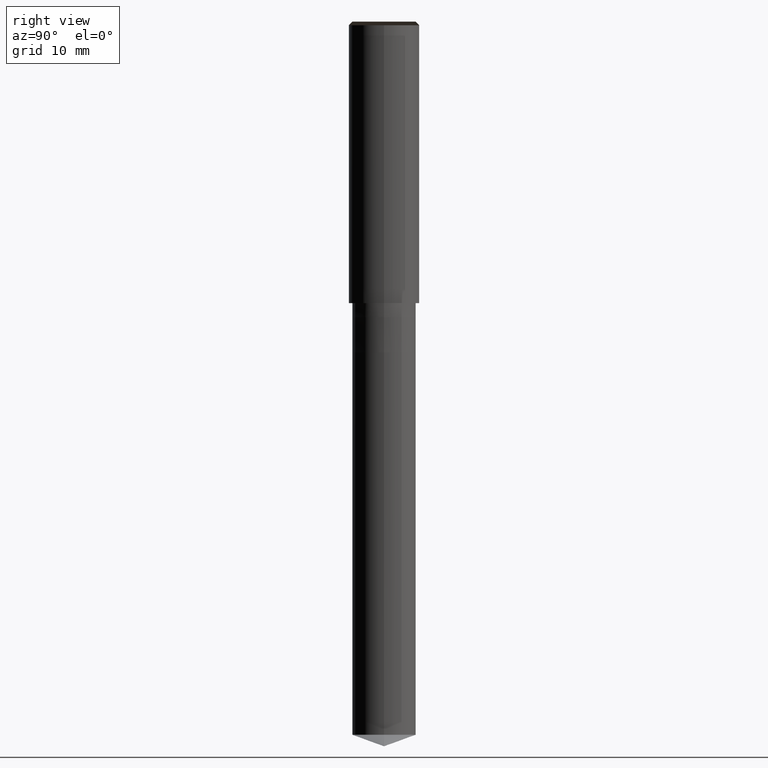
[diagram: clean part render]
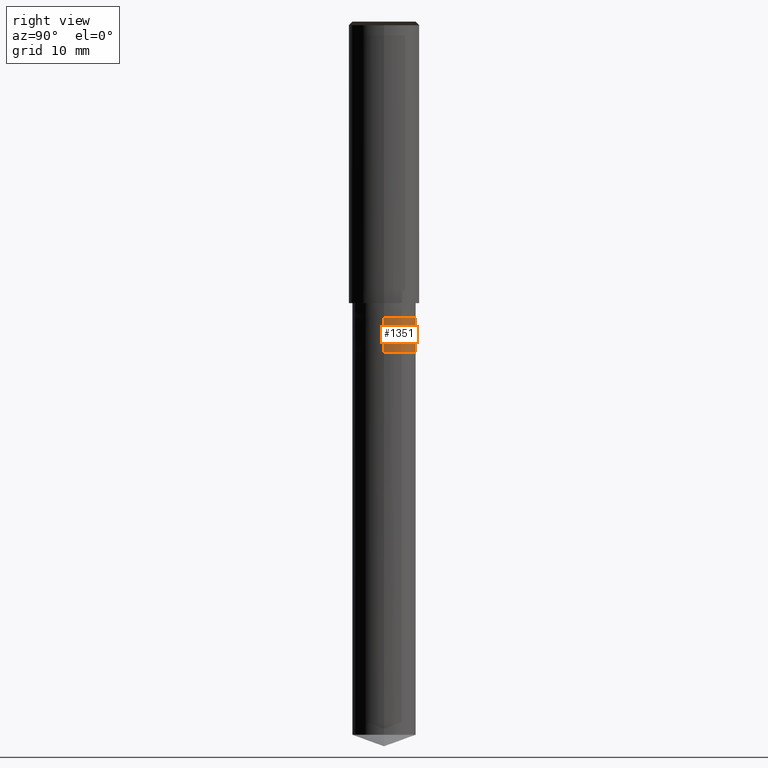
[diagram: same view with one face highlighted and labeled with its STEP entity id]
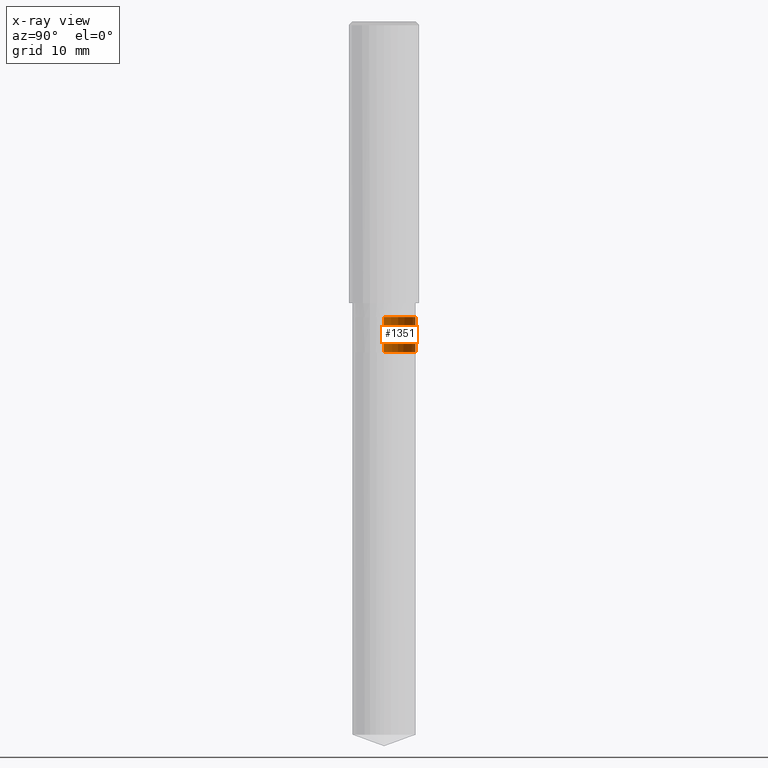
[diagram: x-ray of the same camera — body ghosted, the highlighted face saturated]
A machine part, right view. The second image highlights one B-rep face of the part: STEP entity #1351.
The next image is the same camera in x-ray: the body ghosted, the highlighted face saturated — about 0% of this face is hidden behind the body in this view.
In plain terms, the highlighted face is a freeform B-spline surface patch.
Its self-contained STEP definition (entity closure, byte-faithful):
#1150=CARTESIAN_POINT('',(4.5,0.0,-7.0));
#1151=CARTESIAN_POINT('',(4.5,4.5,-7.0));
#1152=CARTESIAN_POINT('',(0.0,4.5,-7.0));
#1153=CARTESIAN_POINT('',(-4.5,4.5,-7.0));
#1154=CARTESIAN_POINT('',(-4.5,0.0,-7.0));
#1162=CARTESIAN_POINT('',(4.5,0.0,-2.0));
#1163=CARTESIAN_POINT('',(4.5,4.5,-2.0));
#1164=CARTESIAN_POINT('',(0.0,4.5,-2.0));
#1165=CARTESIAN_POINT('',(-4.5,4.5,-2.0));
#1166=CARTESIAN_POINT('',(-4.5,0.0,-2.0));
#1332=(
BOUNDED_SURFACE()
B_SPLINE_SURFACE(1,2,(
(#1150,#1151,#1152,#1153,#1154),
(#1162,#1163,#1164,#1165,#1166)
), .UNSPECIFIED.,.F.,.F.,.F.)
B_SPLINE_SURFACE_WITH_KNOTS((2,2),(3,2,3),(
0.0,1.0),(
0.0,0.5,1.0), .UNSPECIFIED.)
GEOMETRIC_REPRESENTATION_ITEM()
RATIONAL_B_SPLINE_SURFACE(((1.0,0.707106781187,1.0,0.707106781187,1.0),
(1.0,0.707106781187,1.0,0.707106781187,1.0)
))
REPRESENTATION_ITEM('')
SURFACE()
);
#1333=(
BOUNDED_CURVE()
B_SPLINE_CURVE(2,(#1154,#1153,#1152,#1151,#1150),.UNSPECIFIED.,.F.,.F.)
B_SPLINE_CURVE_WITH_KNOTS((3,2,3),
(0.0,0.5,1.0),.UNSPECIFIED.)
CURVE()
GEOMETRIC_REPRESENTATION_ITEM()
RATIONAL_B_SPLINE_CURVE((1.0,0.707106781187,1.0,0.707106781187,1.0))
REPRESENTATION_ITEM('')
);
#1334=(
BOUNDED_CURVE()
B_SPLINE_CURVE(1,(#1150,#1162),.UNSPECIFIED.,.F.,.F.)
B_SPLINE_CURVE_WITH_KNOTS((2,2),
(0.0,1.0),.UNSPECIFIED.)
CURVE()
GEOMETRIC_REPRESENTATION_ITEM()
RATIONAL_B_SPLINE_CURVE((1.0,1.0))
REPRESENTATION_ITEM('')
);
#1335=(
BOUNDED_CURVE()
B_SPLINE_CURVE(2,(#1162,#1163,#1164,#1165,#1166),.UNSPECIFIED.,.F.,.F.)
B_SPLINE_CURVE_WITH_KNOTS((3,2,3),
(0.0,0.5,1.0),.UNSPECIFIED.)
CURVE()
GEOMETRIC_REPRESENTATION_ITEM()
RATIONAL_B_SPLINE_CURVE((1.0,0.707106781187,1.0,0.707106781187,1.0))
REPRESENTATION_ITEM('')
);
#1336=(
BOUNDED_CURVE()
B_SPLINE_CURVE(1,(#1166,#1154),.UNSPECIFIED.,.F.,.F.)
B_SPLINE_CURVE_WITH_KNOTS((2,2),
(0.0,1.0),.UNSPECIFIED.)
CURVE()
GEOMETRIC_REPRESENTATION_ITEM()
RATIONAL_B_SPLINE_CURVE((1.0,1.0))
REPRESENTATION_ITEM('')
);
#1337=VERTEX_POINT('',#1150);
#1338=VERTEX_POINT('',#1154);
#1339=VERTEX_POINT('',#1162);
#1340=VERTEX_POINT('',#1166);
#1341=EDGE_CURVE('',#1338,#1337,#1333,.T.);
#1342=EDGE_CURVE('',#1337,#1339,#1334,.T.);
#1343=EDGE_CURVE('',#1339,#1340,#1335,.T.);
#1344=EDGE_CURVE('',#1340,#1338,#1336,.T.);
#1345=ORIENTED_EDGE('',*,*,#1341,.T.);
#1346=ORIENTED_EDGE('',*,*,#1342,.T.);
#1347=ORIENTED_EDGE('',*,*,#1343,.T.);
#1348=ORIENTED_EDGE('',*,*,#1344,.T.);
#1349=EDGE_LOOP('',(#1345,#1346,#1347,#1348));
#1350=FACE_OUTER_BOUND('',#1349,.T.);
#1351=ADVANCED_FACE('',(#1350),#1332,.T.);